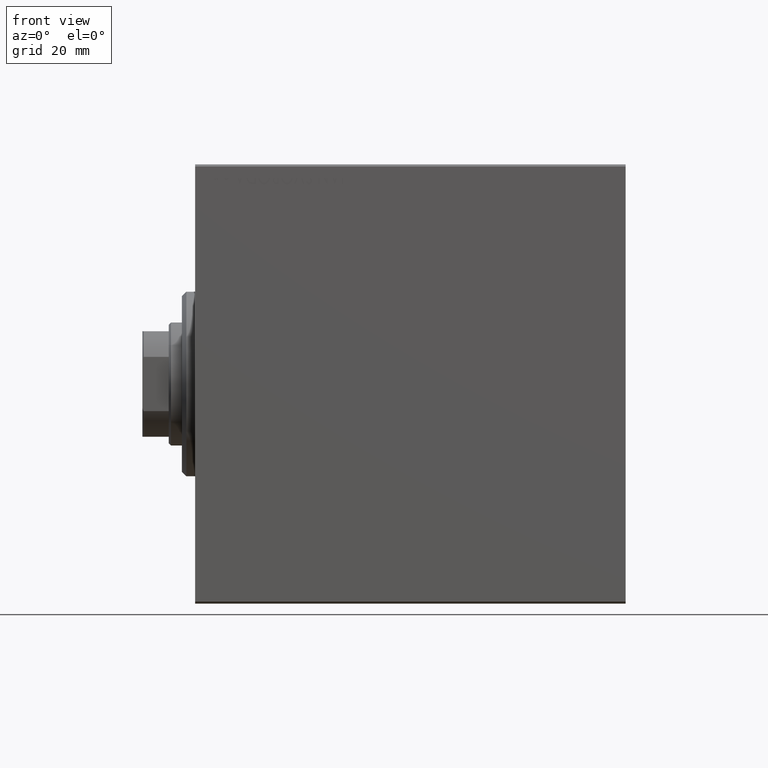
[diagram: clean part render]
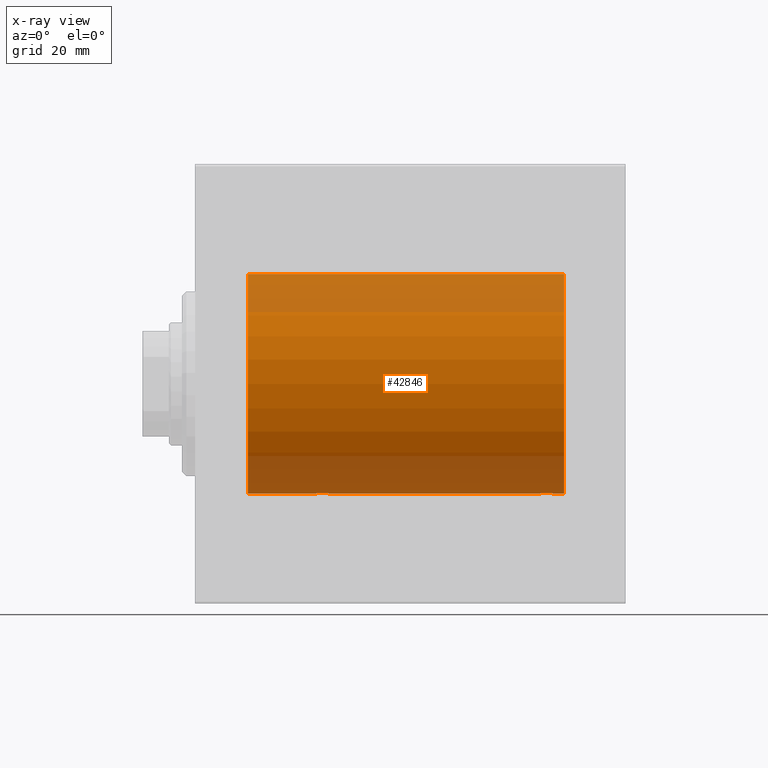
[diagram: x-ray — body ghosted, one internal face saturated and labeled with its STEP entity id]
A machine part, front view, then the same camera in x-ray: the body is ghosted and one INTERNAL B-rep face — a face not visible from any outside direction — is saturated and labeled: STEP entity #42846.
In plain terms, the highlighted cylindrical surface (partial cylindrical patch) has radius 25 mm, axis along (-1, -0, -0).
Its self-contained STEP definition (entity closure, byte-faithful):
#1023 = CARTESIAN_POINT ( 'NONE',  ( 11.99999999999999645, 3.061616997868382254E-15, -25.00000000000000000 ) ) ;
#1628 = CARTESIAN_POINT ( 'NONE',  ( 79.35439333851368815, -2.420689345803750836, -24.88254961038873958 ) ) ;
#1858 = CARTESIAN_POINT ( 'NONE',  ( 80.64904390169097326, -2.419770561643902695, -24.88263927071750814 ) ) ;
#2004 = CARTESIAN_POINT ( 'NONE',  ( 28.35439333851369526, -2.420689345803757053, -24.88254961038873958 ) ) ;
#2081 = CARTESIAN_POINT ( 'NONE',  ( 78.47743225659816346, -1.989585286700248590, -24.92087098724766747 ) ) ;
#2223 = CARTESIAN_POINT ( 'NONE',  ( 26.50000000000001066, -0.3305063766663772773, -25.00000000000000711 ) ) ;
#2295 = CARTESIAN_POINT ( 'NONE',  ( 82.50000000000000000, -0.1631750940176171505, -25.00000000000000355 ) ) ;
#2453 = CARTESIAN_POINT ( 'NONE',  ( 31.50000000000000000, 3.061616978460191625E-15, -25.00000000000000000 ) ) ;
#2526 = CARTESIAN_POINT ( 'NONE',  ( 79.19564339083697746, -2.372734907014171224, -24.88722742718433523 ) ) ;
#3007 = EDGE_CURVE ( 'NONE', #36688, #7112, #13592, .T. ) ;
#3548 = CARTESIAN_POINT ( 'NONE',  ( 84.00000000000000000, 0.000000000000000000, 25.00000000000000000 ) ) ;
#5007 = CARTESIAN_POINT ( 'NONE',  ( 79.83676410361458409, -2.500125740978189182, -24.87467329022545215 ) ) ;
#5151 = CARTESIAN_POINT ( 'NONE',  ( 31.37215969408607563, -0.8058335233485421911, -24.98746277938383287 ) ) ;
#5232 = CARTESIAN_POINT ( 'NONE',  ( 78.89276154161592558, -2.247417070759896607, -24.89885693081946272 ) ) ;
#5257 = CARTESIAN_POINT ( 'NONE',  ( 84.00000000000000000, 3.061616997868382254E-15, -25.00000000000000000 ) ) ;
#5280 = DIRECTION ( 'NONE',  ( -1.000000000000000000, -0.000000000000000000, -0.000000000000000000 ) ) ;
#5598 = CARTESIAN_POINT ( 'NONE',  ( 30.25383195424503668, -2.169003991399866660, -24.90589728951138682 ) ) ;
#5674 = CARTESIAN_POINT ( 'NONE',  ( 82.24760251019554858, -1.106703319666881180, -24.97594585958024282 ) ) ;
#5816 = CARTESIAN_POINT ( 'NONE',  ( 29.64904390169096615, -2.419770561643904472, -24.88263927071750459 ) ) ;
#5890 = CARTESIAN_POINT ( 'NONE',  ( 77.75393620905936132, -1.109818057797414381, -24.97580694515541921 ) ) ;
#6937 = VECTOR ( 'NONE', #22835, 1000.000000000000000 ) ;
#7112 = VERTEX_POINT ( 'NONE', #32783 ) ;
#7319 = VECTOR ( 'NONE', #5280, 1000.000000000000000 ) ;
#7992 = DIRECTION ( 'NONE',  ( -1.000000000000000000, -0.000000000000000000, -0.000000000000000000 ) ) ;
#8534 = CARTESIAN_POINT ( 'NONE',  ( 27.89276154161589716, -2.247417070759893498, -24.89885693081946272 ) ) ;
#9000 = B_SPLINE_CURVE_WITH_KNOTS ( 'NONE', 3,
 ( #2453, #39334, #40213, #12123, #5151, #36630, #22684, #25831, #29437, #33248, #22238, #5598, #11898, #15250, #5816, #19512, #26051, #43130, #12335, #2004, #16143, #8534, #29215, #39775, #35962, #12566, #32356, #33021, #19293, #19070, #2223, #15914 ),
 .UNSPECIFIED., .F., .F.,
 ( 4, 2, 2, 2, 2, 2, 2, 2, 2, 2, 2, 2, 2, 2, 2, 4 ),
 ( 0.007821024441662303289, 0.008309723826317913162, 0.008798423210973523034, 0.009287122595629127703, 0.009775821980284732371, 0.01026452136494033877, 0.01075322074959594518, 0.01124192013425154985, 0.01173061951890715451, 0.01221931890356276092, 0.01270801828821836559, 0.01319671767287397025, 0.01368541705752957666, 0.01417411644218518132, 0.01466281582684078599, 0.01564021459615200227 ),
 .UNSPECIFIED. ) ;
#9054 = CARTESIAN_POINT ( 'NONE',  ( 81.25383195424505800, -2.169003991399860443, -24.90589728951139037 ) ) ;
#9078 = LINE ( 'NONE', #5257, #34849 ) ;
#10138 = EDGE_CURVE ( 'NONE', #35752, #36688, #9078, .T. ) ;
#11452 = ORIENTED_EDGE ( 'NONE', *, *, #3007, .T. ) ;
#11481 = VERTEX_POINT ( 'NONE', #3548 ) ;
#11898 = CARTESIAN_POINT ( 'NONE',  ( 30.11036796508863844, -2.245863995402896496, -24.89899750494197406 ) ) ;
#12051 = CARTESIAN_POINT ( 'NONE',  ( 84.00000000000000000, 3.061616997868382254E-15, -25.00000000000000000 ) ) ;
#12123 = CARTESIAN_POINT ( 'NONE',  ( 31.42014909220929653, -0.6480119923854192887, -24.99212088949391131 ) ) ;
#12335 = CARTESIAN_POINT ( 'NONE',  ( 28.67403429960539540, -2.484007091859760319, -24.87630842367762440 ) ) ;
#12414 = CARTESIAN_POINT ( 'NONE',  ( 77.83172358506043054, -1.255214705003180109, -24.96884293994577675 ) ) ;
#12566 = CARTESIAN_POINT ( 'NONE',  ( 27.11814045851354393, -1.653834020452936260, -24.94550385189585029 ) ) ;
#12644 = CARTESIAN_POINT ( 'NONE',  ( 78.01461966282909088, -1.528152964861308138, -24.95362559291378091 ) ) ;
#12861 = CARTESIAN_POINT ( 'NONE',  ( 82.17011290280929359, -1.252049606094341572, -24.96900299967627745 ) ) ;
#13053 = ORIENTED_EDGE ( 'NONE', *, *, #31041, .T. ) ;
#13592 = B_SPLINE_CURVE_WITH_KNOTS ( 'NONE', 3,
 ( #19364, #2295, #22978, #19590, #22315, #5674, #12861, #40074, #25907, #33094, #25686, #9054, #16222, #15993, #1858, #19151, #32878, #5007, #36701, #1628, #2526, #5232, #15334, #2081, #15769, #22537, #12644, #12414, #5890, #26574, #29511, #26353 ),
 .UNSPECIFIED., .F., .F.,
 ( 4, 2, 2, 2, 2, 2, 2, 2, 2, 2, 2, 2, 2, 2, 2, 4 ),
 ( 0.007821024441662298085, 0.008309723826317902753, 0.008798423210973509156, 0.009287122595629113825, 0.009775821980284718493, 0.01026452136494032490, 0.01075322074959592956, 0.01124192013425153597, 0.01173061951890714064, 0.01221931890356274530, 0.01270801828821835171, 0.01319671767287395811, 0.01368541705752956104, 0.01417411644218516745, 0.01466281582684077212, 0.01564021459615199880 ),
 .UNSPECIFIED. ) ;
#13986 = CIRCLE ( 'NONE', #16126, 25.00000000000000000 ) ;
#14712 = CIRCLE ( 'NONE', #19012, 25.00000000000000000 ) ;
#15154 = CARTESIAN_POINT ( 'NONE',  ( 26.50000000000000355, -3.314090237927254693E-15, -25.00000000000000000 ) ) ;
#15161 = CARTESIAN_POINT ( 'NONE',  ( 84.00000000000000000, 0.000000000000000000, 0.000000000000000000 ) ) ;
#15250 = CARTESIAN_POINT ( 'NONE',  ( 29.80788342405805125, -2.371528299825743424, -24.88734287464369999 ) ) ;
#15334 = CARTESIAN_POINT ( 'NONE',  ( 78.74915976075949686, -2.170728182476720391, -24.90574631553725027 ) ) ;
#15414 = ORIENTED_EDGE ( 'NONE', *, *, #30357, .F. ) ;
#15596 = CARTESIAN_POINT ( 'NONE',  ( 84.00000000000000000, 3.061616997868382254E-15, -25.00000000000000000 ) ) ;
#15769 = CARTESIAN_POINT ( 'NONE',  ( 78.34878866440891443, -1.884161199660618013, -24.92916496727982789 ) ) ;
#15878 = EDGE_CURVE ( 'NONE', #41998, #28568, #35640, .T. ) ;
#15914 = CARTESIAN_POINT ( 'NONE',  ( 26.50000000000000355, -3.314090237927254693E-15, -25.00000000000000000 ) ) ;
#15993 = CARTESIAN_POINT ( 'NONE',  ( 80.80788342405803348, -2.371528299825742092, -24.88734287464371064 ) ) ;
#16126 = AXIS2_PLACEMENT_3D ( 'NONE', #27141, #30294, #24202 ) ;
#16143 = CARTESIAN_POINT ( 'NONE',  ( 28.19564339083698457, -2.372734907014170780, -24.88722742718433878 ) ) ;
#16222 = CARTESIAN_POINT ( 'NONE',  ( 81.11036796508865621, -2.245863995402895164, -24.89899750494197406 ) ) ;
#16477 = DIRECTION ( 'NONE',  ( -1.000000000000000000, -0.000000000000000000, -0.000000000000000000 ) ) ;
#17094 = ORIENTED_EDGE ( 'NONE', *, *, #28443, .T. ) ;
#19012 = AXIS2_PLACEMENT_3D ( 'NONE', #40868, #40650, #43798 ) ;
#19070 = CARTESIAN_POINT ( 'NONE',  ( 26.56650644760253499, -0.6588655613945881839, -24.99312727339971119 ) ) ;
#19151 = CARTESIAN_POINT ( 'NONE',  ( 80.32947680114270383, -2.483544361357264751, -24.87635491893501438 ) ) ;
#19293 = CARTESIAN_POINT ( 'NONE',  ( 26.75393620905934000, -1.109818057797415936, -24.97580694515542987 ) ) ;
#19364 = CARTESIAN_POINT ( 'NONE',  ( 82.50000000000001421, 3.061616978466502512E-15, -25.00000000000000000 ) ) ;
#19512 = CARTESIAN_POINT ( 'NONE',  ( 29.32947680114269318, -2.483544361357266972, -24.87635491893501793 ) ) ;
#19590 = CARTESIAN_POINT ( 'NONE',  ( 82.42014909220930008, -0.6480119923854186226, -24.99212088949390775 ) ) ;
#21629 = ORIENTED_EDGE ( 'NONE', *, *, #15878, .T. ) ;
#22238 = CARTESIAN_POINT ( 'NONE',  ( 30.52536182243080276, -1.987446652080258724, -24.92104239223419881 ) ) ;
#22315 = CARTESIAN_POINT ( 'NONE',  ( 82.37215969408609340, -0.8058335233485441895, -24.98746277938383287 ) ) ;
#22537 = CARTESIAN_POINT ( 'NONE',  ( 78.11814045851357946, -1.653834020452939146, -24.94550385189584318 ) ) ;
#22684 = CARTESIAN_POINT ( 'NONE',  ( 31.17011290280923674, -1.252049606094335132, -24.96900299967627035 ) ) ;
#22784 = DIRECTION ( 'NONE',  ( -1.000000000000000000, -0.000000000000000000, -0.000000000000000000 ) ) ;
#22835 = DIRECTION ( 'NONE',  ( -1.000000000000000000, -0.000000000000000000, -0.000000000000000000 ) ) ;
#22978 = CARTESIAN_POINT ( 'NONE',  ( 82.48417840057659589, -0.3254210271412191768, -24.99840249400844883 ) ) ;
#23690 = AXIS2_PLACEMENT_3D ( 'NONE', #15161, #7992, #32268 ) ;
#24202 = DIRECTION ( 'NONE',  ( 0.000000000000000000, 0.000000000000000000, 1.000000000000000000 ) ) ;
#25686 = CARTESIAN_POINT ( 'NONE',  ( 81.52536182243082408, -1.987446652080251619, -24.92104239223420592 ) ) ;
#25763 = LINE ( 'NONE', #12051, #6937 ) ;
#25831 = CARTESIAN_POINT ( 'NONE',  ( 30.98749815834399257, -1.525407911884362644, -24.95379469572362652 ) ) ;
#25907 = CARTESIAN_POINT ( 'NONE',  ( 81.88412382786472676, -1.651251241585101059, -24.94567559498348430 ) ) ;
#26051 = CARTESIAN_POINT ( 'NONE',  ( 29.16706495178061331, -2.499872792855078352, -24.87469871246083031 ) ) ;
#26219 = CARTESIAN_POINT ( 'NONE',  ( 31.50000000000000000, 3.061616978460191625E-15, -25.00000000000000000 ) ) ;
#26236 = CARTESIAN_POINT ( 'NONE',  ( 11.99999999999999645, 0.000000000000000000, 25.00000000000000000 ) ) ;
#26353 = CARTESIAN_POINT ( 'NONE',  ( 77.50000000000001421, -3.163294216715586498E-15, -25.00000000000000000 ) ) ;
#26574 = CARTESIAN_POINT ( 'NONE',  ( 77.56650644760256341, -0.6588655613945877398, -24.99312727339970408 ) ) ;
#27141 = CARTESIAN_POINT ( 'NONE',  ( 11.99999999999999645, 0.000000000000000000, 0.000000000000000000 ) ) ;
#27822 = VECTOR ( 'NONE', #16477, 1000.000000000000000 ) ;
#28443 = EDGE_CURVE ( 'NONE', #28568, #37949, #13986, .T. ) ;
#28568 = VERTEX_POINT ( 'NONE', #1023 ) ;
#29215 = CARTESIAN_POINT ( 'NONE',  ( 27.74915976075945068, -2.170728182476715951, -24.90574631553724672 ) ) ;
#29437 = CARTESIAN_POINT ( 'NONE',  ( 30.88412382786470900, -1.651251241585097951, -24.94567559498349141 ) ) ;
#29511 = CARTESIAN_POINT ( 'NONE',  ( 77.50000000000001421, -0.3305063766663793867, -25.00000000000000711 ) ) ;
#29542 = CARTESIAN_POINT ( 'NONE',  ( 84.00000000000000000, 0.000000000000000000, 25.00000000000000000 ) ) ;
#30294 = DIRECTION ( 'NONE',  ( -1.000000000000000000, 0.000000000000000000, 0.000000000000000000 ) ) ;
#30357 = EDGE_CURVE ( 'NONE', #35752, #11481, #14712, .T. ) ;
#31041 = EDGE_CURVE ( 'NONE', #41285, #41998, #9000, .T. ) ;
#32268 = DIRECTION ( 'NONE',  ( 0.000000000000000000, 0.000000000000000000, 1.000000000000000000 ) ) ;
#32356 = CARTESIAN_POINT ( 'NONE',  ( 27.01461966282905891, -1.528152964861308138, -24.95362559291378801 ) ) ;
#32358 = CARTESIAN_POINT ( 'NONE',  ( 82.50000000000001421, 3.061616978466502512E-15, -25.00000000000000000 ) ) ;
#32783 = CARTESIAN_POINT ( 'NONE',  ( 77.50000000000001421, -3.163294216715586498E-15, -25.00000000000000000 ) ) ;
#32878 = CARTESIAN_POINT ( 'NONE',  ( 80.16706495178063108, -2.499872792855076575, -24.87469871246082675 ) ) ;
#33021 = CARTESIAN_POINT ( 'NONE',  ( 26.83172358506043764, -1.255214705003178555, -24.96884293994578741 ) ) ;
#33094 = CARTESIAN_POINT ( 'NONE',  ( 81.65383336149341176, -1.881857718844715421, -24.92933960374833546 ) ) ;
#33126 = LINE ( 'NONE', #29542, #27822 ) ;
#33248 = CARTESIAN_POINT ( 'NONE',  ( 30.65383336149338689, -1.881857718844712757, -24.92933960374833902 ) ) ;
#33737 = EDGE_CURVE ( 'NONE', #7112, #41285, #25763, .T. ) ;
#34849 = VECTOR ( 'NONE', #22784, 1000.000000000000000 ) ;
#35640 = LINE ( 'NONE', #15596, #7319 ) ;
#35702 = EDGE_CURVE ( 'NONE', #11481, #37949, #33126, .T. ) ;
#35752 = VERTEX_POINT ( 'NONE', #41206 ) ;
#35962 = CARTESIAN_POINT ( 'NONE',  ( 27.34878866440887535, -1.884161199660613351, -24.92916496727982079 ) ) ;
#36094 = FACE_OUTER_BOUND ( 'NONE', #36638, .T. ) ;
#36630 = CARTESIAN_POINT ( 'NONE',  ( 31.24760251019550950, -1.106703319666878960, -24.97594585958023217 ) ) ;
#36638 = EDGE_LOOP ( 'NONE', ( #15414, #40722, #11452, #42357, #13053, #21629, #17094, #40177 ) ) ;
#36688 = VERTEX_POINT ( 'NONE', #32358 ) ;
#36701 = CARTESIAN_POINT ( 'NONE',  ( 79.67403429960539540, -2.484007091859756766, -24.87630842367762796 ) ) ;
#37949 = VERTEX_POINT ( 'NONE', #26236 ) ;
#38582 = CYLINDRICAL_SURFACE ( 'NONE', #23690, 25.00000000000000000 ) ;
#39334 = CARTESIAN_POINT ( 'NONE',  ( 31.49999999999999289, -0.1631750940176174836, -25.00000000000000711 ) ) ;
#39775 = CARTESIAN_POINT ( 'NONE',  ( 27.47743225659811017, -1.989585286700241928, -24.92087098724766037 ) ) ;
#40074 = CARTESIAN_POINT ( 'NONE',  ( 81.98749815834398191, -1.525407911884367529, -24.95379469572361586 ) ) ;
#40177 = ORIENTED_EDGE ( 'NONE', *, *, #35702, .F. ) ;
#40213 = CARTESIAN_POINT ( 'NONE',  ( 31.48417840057656036, -0.3254210271412191213, -24.99840249400844172 ) ) ;
#40650 = DIRECTION ( 'NONE',  ( -1.000000000000000000, 0.000000000000000000, 0.000000000000000000 ) ) ;
#40722 = ORIENTED_EDGE ( 'NONE', *, *, #10138, .T. ) ;
#40868 = CARTESIAN_POINT ( 'NONE',  ( 84.00000000000000000, 0.000000000000000000, 0.000000000000000000 ) ) ;
#41206 = CARTESIAN_POINT ( 'NONE',  ( 84.00000000000000000, 3.061616997868382254E-15, -25.00000000000000000 ) ) ;
#41285 = VERTEX_POINT ( 'NONE', #26219 ) ;
#41998 = VERTEX_POINT ( 'NONE', #15154 ) ;
#42357 = ORIENTED_EDGE ( 'NONE', *, *, #33737, .T. ) ;
#42846 = ADVANCED_FACE ( 'NONE', ( #36094 ), #38582, .F. ) ;
#43130 = CARTESIAN_POINT ( 'NONE',  ( 28.83676410361456632, -2.500125740978190958, -24.87467329022545215 ) ) ;
#43798 = DIRECTION ( 'NONE',  ( 0.000000000000000000, 0.000000000000000000, 1.000000000000000000 ) ) ;